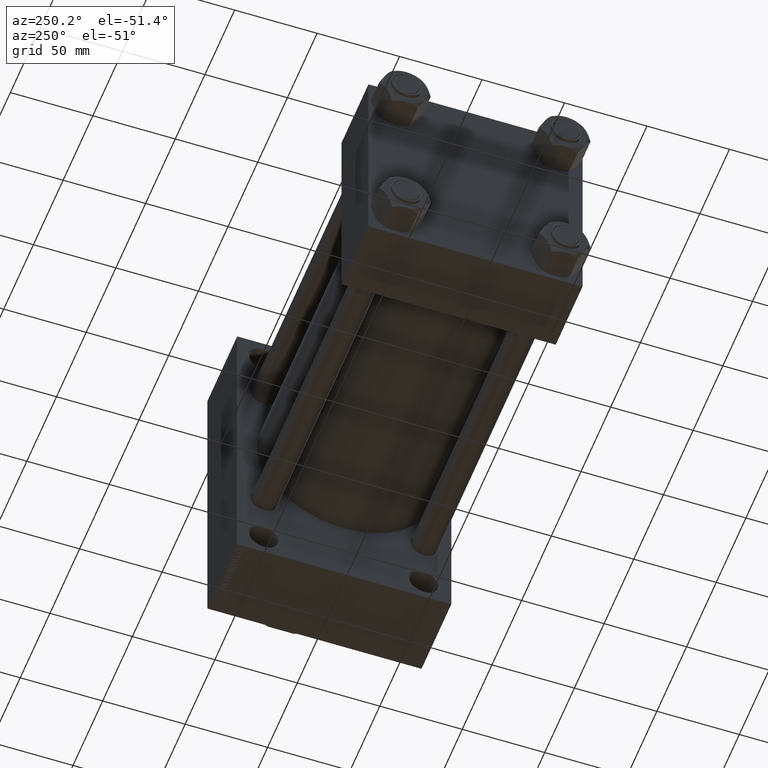
[diagram: clean part render]
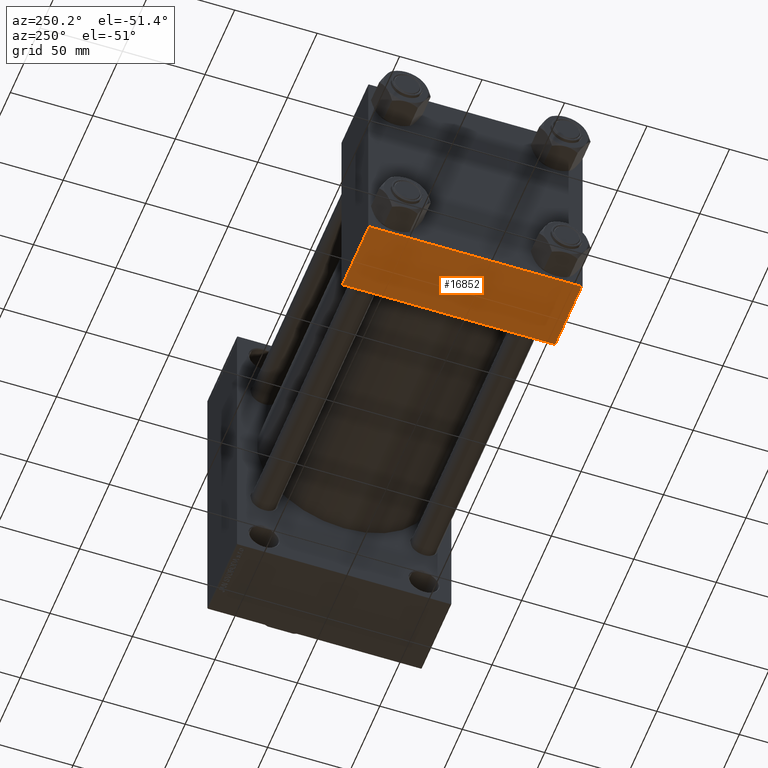
[diagram: same view with one face highlighted and labeled with its STEP entity id]
A machine part, auxiliary view. The second image highlights one B-rep face of the part: STEP entity #16852.
In plain terms, the highlighted planar face has unit normal (0, 0, -1).
Its self-contained STEP definition (entity closure, byte-faithful):
#1815 = EDGE_CURVE ( 'NONE', #21465, #2481, #12870, .T. ) ;
#1992 = DIRECTION ( 'NONE',  ( 0.000000000000000000, -1.000000000000000000, -1.067522139062650425E-16 ) ) ;
#2328 = VERTEX_POINT ( 'NONE', #45177 ) ;
#2481 = VERTEX_POINT ( 'NONE', #8842 ) ;
#3430 = LINE ( 'NONE', #18175, #10088 ) ;
#4236 = ORIENTED_EDGE ( 'NONE', *, *, #20937, .F. ) ;
#4971 = DIRECTION ( 'NONE',  ( 0.000000000000000000, 1.000000000000000000, 1.067522139062650548E-16 ) ) ;
#8249 = EDGE_CURVE ( 'NONE', #30166, #21465, #3430, .T. ) ;
#8842 = CARTESIAN_POINT ( 'NONE',  ( 45.00000000000000000, -64.49999999999994316, -65.00000000000000000 ) ) ;
#9509 = EDGE_CURVE ( 'NONE', #2481, #2328, #34854, .T. ) ;
#10002 = CARTESIAN_POINT ( 'NONE',  ( 45.00000000000000000, 64.49999999999997158, -64.99999999999998579 ) ) ;
#10088 = VECTOR ( 'NONE', #45278, 1000.000000000000000 ) ;
#12870 = LINE ( 'NONE', #27625, #37087 ) ;
#13013 = EDGE_LOOP ( 'NONE', ( #4236, #21344, #26136, #42263 ) ) ;
#15168 = CARTESIAN_POINT ( 'NONE',  ( 0.000000000000000000, 65.00000000000000000, -64.99999999999998579 ) ) ;
#15581 = CARTESIAN_POINT ( 'NONE',  ( 0.000000000000000000, 64.49999999999997158, -64.99999999999998579 ) ) ;
#16089 = FACE_OUTER_BOUND ( 'NONE', #13013, .T. ) ;
#16852 = ADVANCED_FACE ( 'NONE', ( #16089 ), #34493, .T. ) ;
#18175 = CARTESIAN_POINT ( 'NONE',  ( 45.00000000000000000, 64.49999999999997158, -64.99999999999998579 ) ) ;
#18605 = VECTOR ( 'NONE', #38493, 1000.000000000000000 ) ;
#19236 = VECTOR ( 'NONE', #44250, 1000.000000000000000 ) ;
#20937 = EDGE_CURVE ( 'NONE', #30166, #2328, #21481, .T. ) ;
#21344 = ORIENTED_EDGE ( 'NONE', *, *, #8249, .T. ) ;
#21465 = VERTEX_POINT ( 'NONE', #10002 ) ;
#21481 = LINE ( 'NONE', #15168, #19236 ) ;
#23697 = CARTESIAN_POINT ( 'NONE',  ( 0.000000000000000000, -64.49999999999994316, -65.00000000000000000 ) ) ;
#26136 = ORIENTED_EDGE ( 'NONE', *, *, #1815, .T. ) ;
#27625 = CARTESIAN_POINT ( 'NONE',  ( 45.00000000000000000, 65.00000000000000000, -64.99999999999998579 ) ) ;
#30166 = VERTEX_POINT ( 'NONE', #15581 ) ;
#31819 = DIRECTION ( 'NONE',  ( 0.000000000000000000, 1.067522139062650548E-16, -1.000000000000000000 ) ) ;
#34493 = PLANE ( 'NONE',  #41513 ) ;
#34854 = LINE ( 'NONE', #23697, #18605 ) ;
#37087 = VECTOR ( 'NONE', #1992, 1000.000000000000000 ) ;
#38493 = DIRECTION ( 'NONE',  ( -1.000000000000000000, 0.000000000000000000, 0.000000000000000000 ) ) ;
#41513 = AXIS2_PLACEMENT_3D ( 'NONE', #42497, #31819, #4971 ) ;
#42263 = ORIENTED_EDGE ( 'NONE', *, *, #9509, .T. ) ;
#42497 = CARTESIAN_POINT ( 'NONE',  ( 45.00000000000000000, 65.00000000000000000, -64.99999999999998579 ) ) ;
#44250 = DIRECTION ( 'NONE',  ( 0.000000000000000000, -1.000000000000000000, -1.067522139062650425E-16 ) ) ;
#45177 = CARTESIAN_POINT ( 'NONE',  ( 0.000000000000000000, -64.49999999999994316, -65.00000000000000000 ) ) ;
#45278 = DIRECTION ( 'NONE',  ( 1.000000000000000000, 0.000000000000000000, 0.000000000000000000 ) ) ;